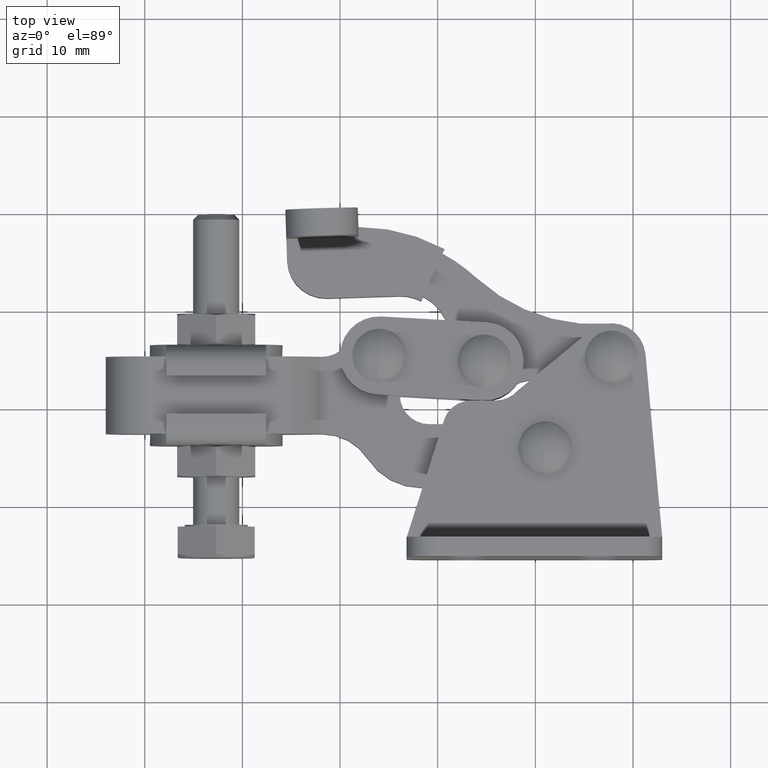
[diagram: clean part render]
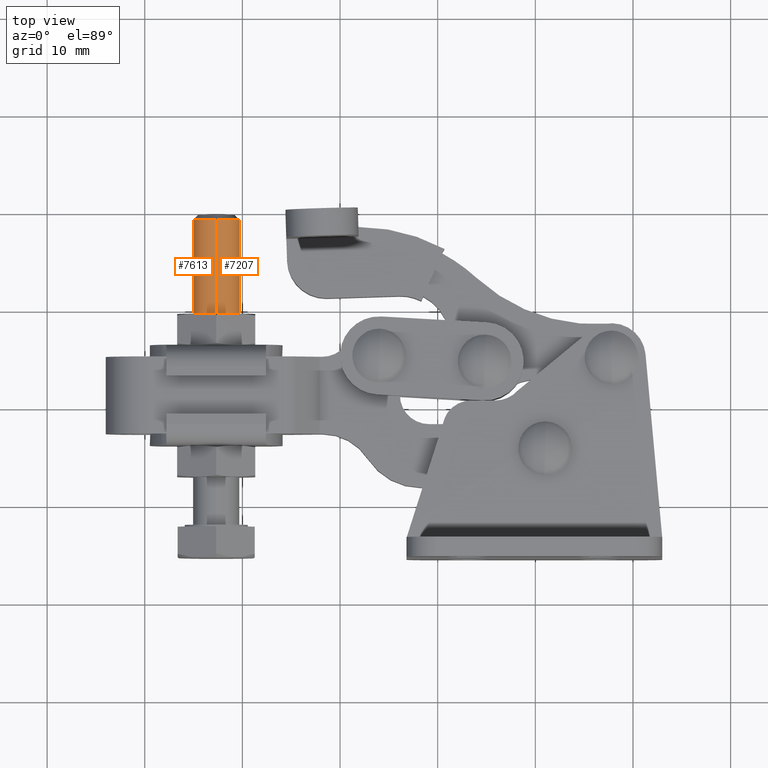
[diagram: same view with one multi-face feature highlighted, each face labeled with its STEP entity id]
A machine part, top view. The highlighted faces form ONE feature: a constant-radius fillet chain: 2 tangent blend faces with common blend radius 2.3813 mm. The faces share edges in the B-rep.
Their STEP definitions:
[1] entity #7613 (Cylinder):
#179 = VERTEX_POINT ( 'NONE', #5536 ) ;
#633 = LINE ( 'NONE', #6819, #4750 ) ;
#1489 = DIRECTION ( 'NONE',  ( 0.0000000000000000000, -1.000000000000000000, -0.0000000000000000000 ) ) ;
#1499 = ORIENTED_EDGE ( 'NONE', *, *, #2556, .F. ) ;
#1704 = AXIS2_PLACEMENT_3D ( 'NONE', #1871, #2326, #9333 ) ;
#1871 = CARTESIAN_POINT ( 'NONE',  ( -42.68164272060499100, 29.49999999999995000, -2.000000000009547500 ) ) ;
#2326 = DIRECTION ( 'NONE',  ( -0.0000000000000000000, 1.000000000000000000, -0.0000000000000000000 ) ) ;
#2556 = EDGE_CURVE ( 'NONE', #3073, #179, #633, .T. ) ;
#2777 = AXIS2_PLACEMENT_3D ( 'NONE', #8498, #9071, #4667 ) ;
#3073 = VERTEX_POINT ( 'NONE', #8663 ) ;
#3191 = CARTESIAN_POINT ( 'NONE',  ( -42.68164272060499100, 39.64999999999991300, -4.381250000009547600 ) ) ;
#3223 = DIRECTION ( 'NONE',  ( 0.0000000000000000000, 0.0000000000000000000, 1.000000000000000000 ) ) ;
#3390 = EDGE_CURVE ( 'NONE', #7043, #4396, #7229, .T. ) ;
#4396 = VERTEX_POINT ( 'NONE', #6466 ) ;
#4438 = ORIENTED_EDGE ( 'NONE', *, *, #3390, .T. ) ;
#4667 = DIRECTION ( 'NONE',  ( 0.0000000000000000000, 0.0000000000000000000, -1.000000000000000000 ) ) ;
#4750 = VECTOR ( 'NONE', #7554, 1000.000000000000000 ) ;
#4991 = ORIENTED_EDGE ( 'NONE', *, *, #6115, .T. ) ;
#5462 = VECTOR ( 'NONE', #1489, 1000.000000000000000 ) ;
#5466 = EDGE_LOOP ( 'NONE', ( #4991, #4438, #9030, #1499 ) ) ;
#5536 = CARTESIAN_POINT ( 'NONE',  ( -42.68164272060499100, 29.49999999999995000, 0.3812499999904526100 ) ) ;
#6063 = EDGE_CURVE ( 'NONE', #4396, #179, #6465, .T. ) ;
#6115 = EDGE_CURVE ( 'NONE', #3073, #7043, #8280, .T. ) ;
#6465 = CIRCLE ( 'NONE', #1704, 2.381250000000000100 ) ;
#6466 = CARTESIAN_POINT ( 'NONE',  ( -42.68164272060499100, 29.49999999999995000, -4.381250000009547600 ) ) ;
#6819 = CARTESIAN_POINT ( 'NONE',  ( -42.68164272060499100, 39.64999999999991300, 0.3812499999904526100 ) ) ;
#7043 = VERTEX_POINT ( 'NONE', #7832 ) ;
#7092 = AXIS2_PLACEMENT_3D ( 'NONE', #8035, #8818, #3223 ) ;
#7229 = LINE ( 'NONE', #3191, #5462 ) ;
#7554 = DIRECTION ( 'NONE',  ( 0.0000000000000000000, -1.000000000000000000, -0.0000000000000000000 ) ) ;
#7613 = ADVANCED_FACE ( 'NONE', ( #8701 ), #8463, .T. ) ;
#7832 = CARTESIAN_POINT ( 'NONE',  ( -42.68164272060499100, 39.14999999999990600, -4.381250000009547600 ) ) ;
#8035 = CARTESIAN_POINT ( 'NONE',  ( -42.68164272060499100, 39.64999999999991300, -2.000000000009547500 ) ) ;
#8280 = CIRCLE ( 'NONE', #2777, 2.381250000000000100 ) ;
#8463 = CYLINDRICAL_SURFACE ( 'NONE', #7092, 2.381250000000000100 ) ;
#8498 = CARTESIAN_POINT ( 'NONE',  ( -42.68164272060499100, 39.14999999999990600, -2.000000000009547500 ) ) ;
#8663 = CARTESIAN_POINT ( 'NONE',  ( -42.68164272060499100, 39.14999999999990600, 0.3812499999904526100 ) ) ;
#8701 = FACE_OUTER_BOUND ( 'NONE', #5466, .T. ) ;
#8818 = DIRECTION ( 'NONE',  ( 0.0000000000000000000, -1.000000000000000000, -0.0000000000000000000 ) ) ;
#9030 = ORIENTED_EDGE ( 'NONE', *, *, #6063, .T. ) ;
#9071 = DIRECTION ( 'NONE',  ( -0.0000000000000000000, -1.000000000000000000, -0.0000000000000000000 ) ) ;
#9333 = DIRECTION ( 'NONE',  ( 0.0000000000000000000, 0.0000000000000000000, -1.000000000000000000 ) ) ;
[2] entity #7207 (Cylinder):
#179 = VERTEX_POINT ( 'NONE', #5536 ) ;
#198 = CARTESIAN_POINT ( 'NONE',  ( -42.68164272060499100, 39.14999999999990600, -2.000000000009547500 ) ) ;
#633 = LINE ( 'NONE', #6819, #4750 ) ;
#978 = DIRECTION ( 'NONE',  ( 0.0000000000000000000, 0.0000000000000000000, -1.000000000000000000 ) ) ;
#1489 = DIRECTION ( 'NONE',  ( 0.0000000000000000000, -1.000000000000000000, -0.0000000000000000000 ) ) ;
#2462 = CARTESIAN_POINT ( 'NONE',  ( -42.68164272060499100, 29.49999999999995000, -2.000000000009547500 ) ) ;
#2549 = ORIENTED_EDGE ( 'NONE', *, *, #8452, .T. ) ;
#2556 = EDGE_CURVE ( 'NONE', #3073, #179, #633, .T. ) ;
#2697 = CYLINDRICAL_SURFACE ( 'NONE', #2850, 2.381250000000000100 ) ;
#2755 = DIRECTION ( 'NONE',  ( 0.0000000000000000000, 0.0000000000000000000, 1.000000000000000000 ) ) ;
#2850 = AXIS2_PLACEMENT_3D ( 'NONE', #3504, #7346, #2755 ) ;
#3073 = VERTEX_POINT ( 'NONE', #8663 ) ;
#3191 = CARTESIAN_POINT ( 'NONE',  ( -42.68164272060499100, 39.64999999999991300, -4.381250000009547600 ) ) ;
#3390 = EDGE_CURVE ( 'NONE', #7043, #4396, #7229, .T. ) ;
#3504 = CARTESIAN_POINT ( 'NONE',  ( -42.68164272060499100, 39.64999999999991300, -2.000000000009547500 ) ) ;
#4396 = VERTEX_POINT ( 'NONE', #6466 ) ;
#4537 = DIRECTION ( 'NONE',  ( 0.0000000000000000000, 0.0000000000000000000, -1.000000000000000000 ) ) ;
#4750 = VECTOR ( 'NONE', #7554, 1000.000000000000000 ) ;
#4795 = EDGE_CURVE ( 'NONE', #179, #4396, #6869, .T. ) ;
#5462 = VECTOR ( 'NONE', #1489, 1000.000000000000000 ) ;
#5536 = CARTESIAN_POINT ( 'NONE',  ( -42.68164272060499100, 29.49999999999995000, 0.3812499999904526100 ) ) ;
#5563 = AXIS2_PLACEMENT_3D ( 'NONE', #198, #5657, #978 ) ;
#5657 = DIRECTION ( 'NONE',  ( -0.0000000000000000000, -1.000000000000000000, -0.0000000000000000000 ) ) ;
#6187 = ORIENTED_EDGE ( 'NONE', *, *, #3390, .F. ) ;
#6234 = ORIENTED_EDGE ( 'NONE', *, *, #4795, .T. ) ;
#6466 = CARTESIAN_POINT ( 'NONE',  ( -42.68164272060499100, 29.49999999999995000, -4.381250000009547600 ) ) ;
#6806 = FACE_OUTER_BOUND ( 'NONE', #8162, .T. ) ;
#6819 = CARTESIAN_POINT ( 'NONE',  ( -42.68164272060499100, 39.64999999999991300, 0.3812499999904526100 ) ) ;
#6869 = CIRCLE ( 'NONE', #7912, 2.381250000000000100 ) ;
#6973 = CIRCLE ( 'NONE', #5563, 2.381250000000000100 ) ;
#7043 = VERTEX_POINT ( 'NONE', #7832 ) ;
#7129 = DIRECTION ( 'NONE',  ( -0.0000000000000000000, 1.000000000000000000, -0.0000000000000000000 ) ) ;
#7207 = ADVANCED_FACE ( 'NONE', ( #6806 ), #2697, .T. ) ;
#7229 = LINE ( 'NONE', #3191, #5462 ) ;
#7346 = DIRECTION ( 'NONE',  ( 0.0000000000000000000, -1.000000000000000000, -0.0000000000000000000 ) ) ;
#7554 = DIRECTION ( 'NONE',  ( 0.0000000000000000000, -1.000000000000000000, -0.0000000000000000000 ) ) ;
#7832 = CARTESIAN_POINT ( 'NONE',  ( -42.68164272060499100, 39.14999999999990600, -4.381250000009547600 ) ) ;
#7912 = AXIS2_PLACEMENT_3D ( 'NONE', #2462, #7129, #4537 ) ;
#8162 = EDGE_LOOP ( 'NONE', ( #6187, #2549, #9900, #6234 ) ) ;
#8452 = EDGE_CURVE ( 'NONE', #7043, #3073, #6973, .T. ) ;
#8663 = CARTESIAN_POINT ( 'NONE',  ( -42.68164272060499100, 39.14999999999990600, 0.3812499999904526100 ) ) ;
#9900 = ORIENTED_EDGE ( 'NONE', *, *, #2556, .T. ) ;